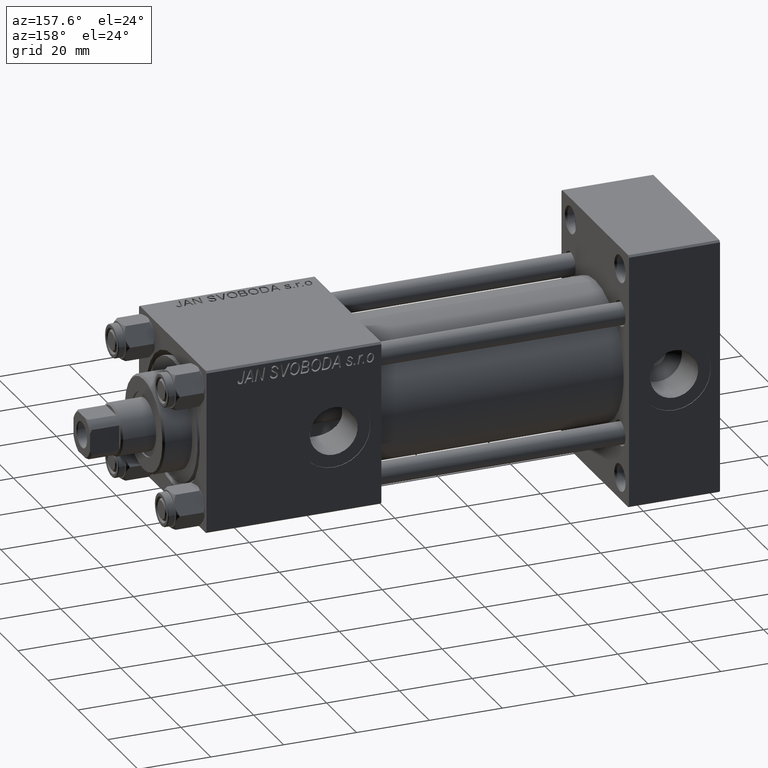
[diagram: clean part render]
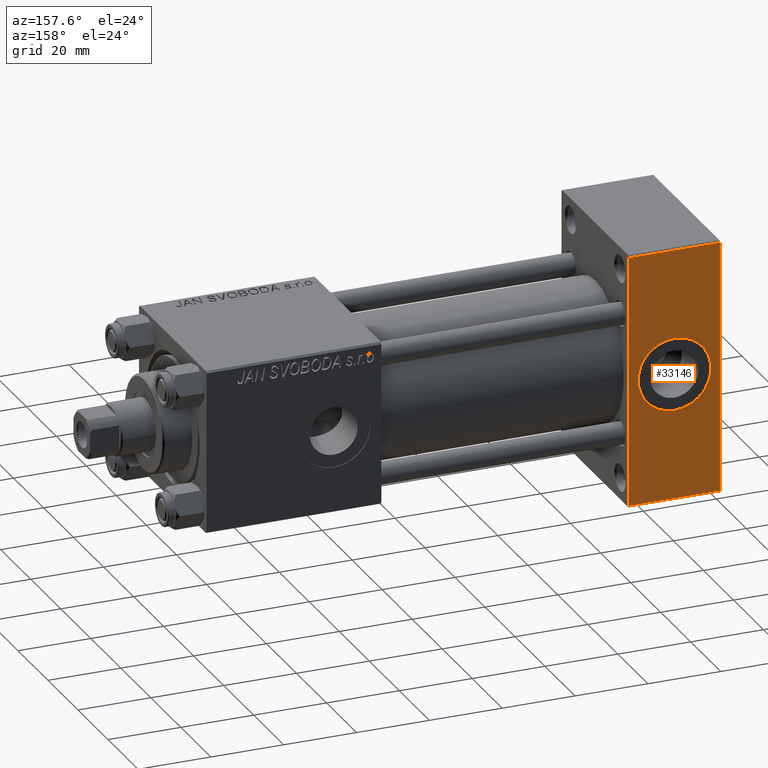
[diagram: same view with one face highlighted and labeled with its STEP entity id]
A machine part, auxiliary view. The second image highlights one B-rep face of the part: STEP entity #33146.
In plain terms, the highlighted planar face has unit normal (0, 1, 0).
Its self-contained STEP definition (entity closure, byte-faithful):
#177 = CARTESIAN_POINT ( 'NONE',  ( 25.00000000000000000, 22.50000000000000355, 35.00000000000000711 ) ) ;
#1175 = LINE ( 'NONE', #21793, #8642 ) ;
#3033 = EDGE_LOOP ( 'NONE', ( #42655, #14047 ) ) ;
#4103 = DIRECTION ( 'NONE',  ( 0.000000000000000000, 1.000000000000000000, 0.000000000000000000 ) ) ;
#4732 = PLANE ( 'NONE',  #29308 ) ;
#5966 = DIRECTION ( 'NONE',  ( 0.000000000000000000, 0.000000000000000000, 1.000000000000000000 ) ) ;
#6933 = LINE ( 'NONE', #41304, #9145 ) ;
#7218 = CARTESIAN_POINT ( 'NONE',  ( 25.00000000000000000, 22.50000000000000355, 34.49999999999999289 ) ) ;
#8313 = CARTESIAN_POINT ( 'NONE',  ( 12.50000000000000178, 22.50000000000000355, -9.999999999999996447 ) ) ;
#8642 = VECTOR ( 'NONE', #20365, 1000.000000000000000 ) ;
#8683 = EDGE_LOOP ( 'NONE', ( #26861, #48082, #16536, #15934 ) ) ;
#9145 = VECTOR ( 'NONE', #22090, 1000.000000000000000 ) ;
#9194 = CARTESIAN_POINT ( 'NONE',  ( 25.00000000000000000, 22.50000000000000355, -34.49999999999999289 ) ) ;
#11756 = EDGE_CURVE ( 'NONE', #44079, #14442, #35189, .T. ) ;
#14047 = ORIENTED_EDGE ( 'NONE', *, *, #11756, .F. ) ;
#14055 = VERTEX_POINT ( 'NONE', #22067 ) ;
#14442 = VERTEX_POINT ( 'NONE', #22165 ) ;
#14651 = CARTESIAN_POINT ( 'NONE',  ( 0.000000000000000000, 22.50000000000000355, 34.49999999999999289 ) ) ;
#15468 = CARTESIAN_POINT ( 'NONE',  ( 25.00000000000000000, 22.50000000000000355, -34.49999999999999289 ) ) ;
#15934 = ORIENTED_EDGE ( 'NONE', *, *, #22610, .T. ) ;
#16209 = DIRECTION ( 'NONE',  ( 0.000000000000000000, 0.000000000000000000, 1.000000000000000000 ) ) ;
#16536 = ORIENTED_EDGE ( 'NONE', *, *, #17620, .F. ) ;
#16989 = EDGE_CURVE ( 'NONE', #14442, #44079, #29573, .T. ) ;
#17514 = DIRECTION ( 'NONE',  ( -1.000000000000000000, 0.000000000000000000, 0.000000000000000000 ) ) ;
#17620 = EDGE_CURVE ( 'NONE', #27369, #14055, #1175, .T. ) ;
#19241 = CARTESIAN_POINT ( 'NONE',  ( 12.50000000000000000, 22.50000000000000355, 0.000000000000000000 ) ) ;
#20365 = DIRECTION ( 'NONE',  ( 0.000000000000000000, 0.000000000000000000, -1.000000000000000000 ) ) ;
#21628 = DIRECTION ( 'NONE',  ( 1.000000000000000000, 0.000000000000000000, 0.000000000000000000 ) ) ;
#21793 = CARTESIAN_POINT ( 'NONE',  ( 0.000000000000000000, 22.50000000000000355, 35.00000000000000711 ) ) ;
#22067 = CARTESIAN_POINT ( 'NONE',  ( 0.000000000000000000, 22.50000000000000355, -34.49999999999999289 ) ) ;
#22090 = DIRECTION ( 'NONE',  ( 0.000000000000000000, 0.000000000000000000, -1.000000000000000000 ) ) ;
#22165 = CARTESIAN_POINT ( 'NONE',  ( 12.50000000000000000, 22.50000000000000355, 9.999999999999996447 ) ) ;
#22501 = VECTOR ( 'NONE', #21628, 1000.000000000000000 ) ;
#22610 = EDGE_CURVE ( 'NONE', #27369, #38143, #48923, .T. ) ;
#23912 = DIRECTION ( 'NONE',  ( 0.000000000000000000, -0.000000000000000000, 1.000000000000000000 ) ) ;
#26861 = ORIENTED_EDGE ( 'NONE', *, *, #30834, .T. ) ;
#27369 = VERTEX_POINT ( 'NONE', #14651 ) ;
#27639 = LINE ( 'NONE', #9194, #35019 ) ;
#29308 = AXIS2_PLACEMENT_3D ( 'NONE', #177, #42362, #23912 ) ;
#29573 = CIRCLE ( 'NONE', #45698, 9.999999999999996447 ) ;
#30727 = FACE_BOUND ( 'NONE', #3033, .T. ) ;
#30834 = EDGE_CURVE ( 'NONE', #38143, #34648, #6933, .T. ) ;
#31733 = FACE_OUTER_BOUND ( 'NONE', #8683, .T. ) ;
#33146 = ADVANCED_FACE ( 'NONE', ( #30727, #31733 ), #4732, .T. ) ;
#33490 = CARTESIAN_POINT ( 'NONE',  ( 12.50000000000000000, 22.50000000000000355, 0.000000000000000000 ) ) ;
#34439 = EDGE_CURVE ( 'NONE', #34648, #14055, #27639, .T. ) ;
#34648 = VERTEX_POINT ( 'NONE', #15468 ) ;
#35019 = VECTOR ( 'NONE', #17514, 1000.000000000000000 ) ;
#35189 = CIRCLE ( 'NONE', #41620, 9.999999999999996447 ) ;
#35294 = CARTESIAN_POINT ( 'NONE',  ( 25.00000000000000000, 22.50000000000000355, 34.49999999999999289 ) ) ;
#38143 = VERTEX_POINT ( 'NONE', #35294 ) ;
#38201 = DIRECTION ( 'NONE',  ( 0.000000000000000000, 1.000000000000000000, 0.000000000000000000 ) ) ;
#41304 = CARTESIAN_POINT ( 'NONE',  ( 25.00000000000000000, 22.50000000000000355, 35.00000000000000711 ) ) ;
#41620 = AXIS2_PLACEMENT_3D ( 'NONE', #33490, #38201, #5966 ) ;
#42362 = DIRECTION ( 'NONE',  ( -0.000000000000000000, 1.000000000000000000, 0.000000000000000000 ) ) ;
#42655 = ORIENTED_EDGE ( 'NONE', *, *, #16989, .F. ) ;
#44079 = VERTEX_POINT ( 'NONE', #8313 ) ;
#45698 = AXIS2_PLACEMENT_3D ( 'NONE', #19241, #4103, #16209 ) ;
#48082 = ORIENTED_EDGE ( 'NONE', *, *, #34439, .T. ) ;
#48923 = LINE ( 'NONE', #7218, #22501 ) ;